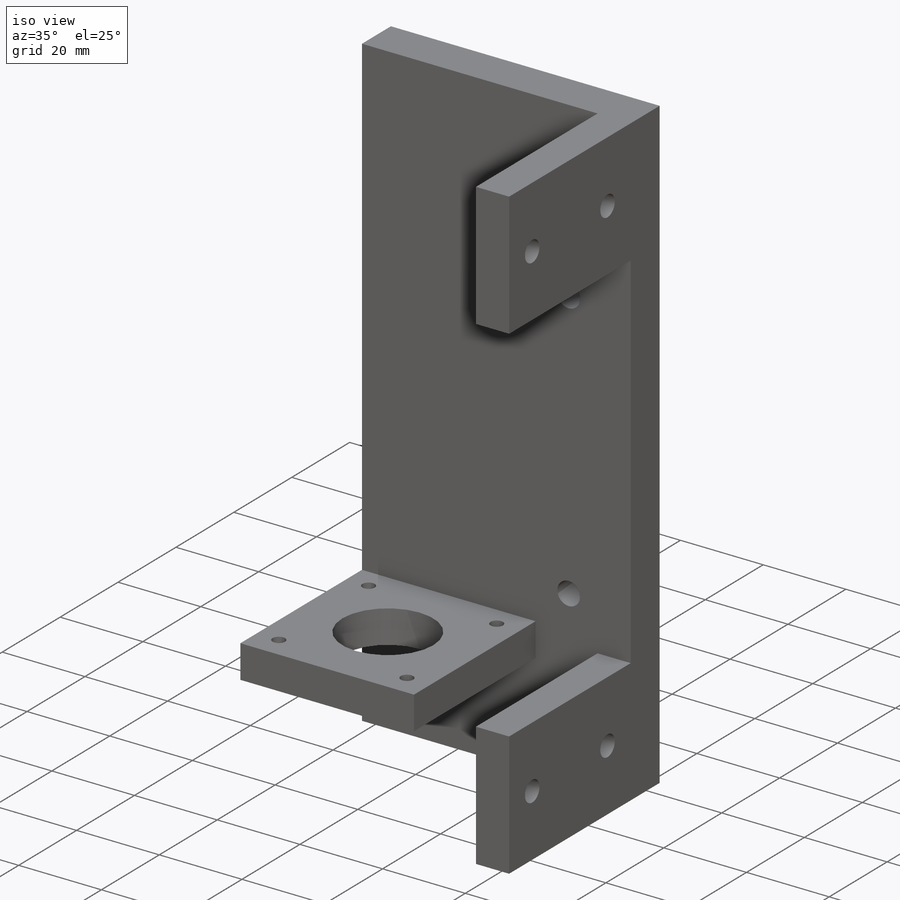
[diagram: iso view]
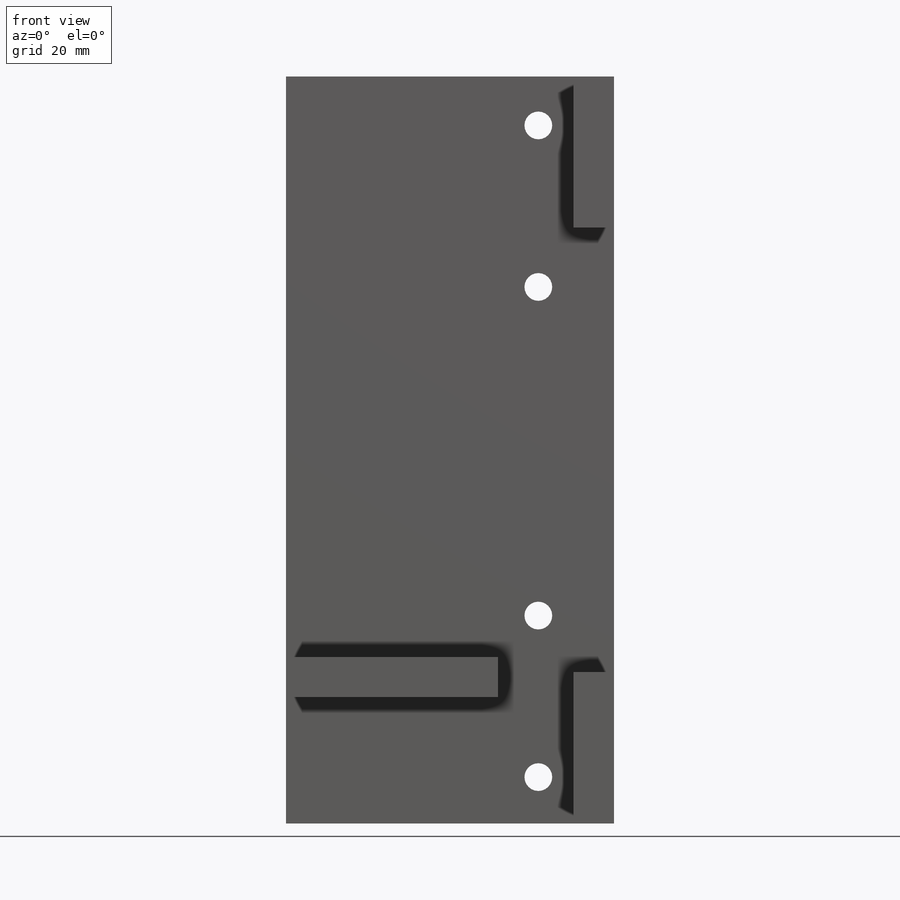
[diagram: front view]
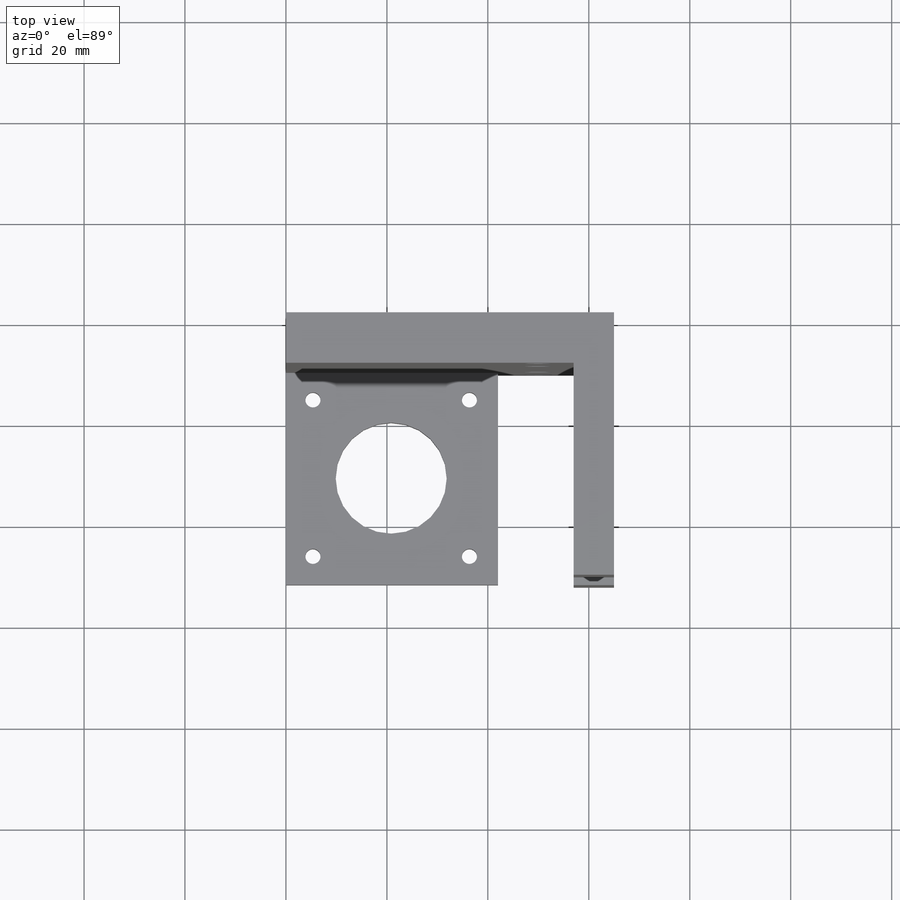
[diagram: top view]
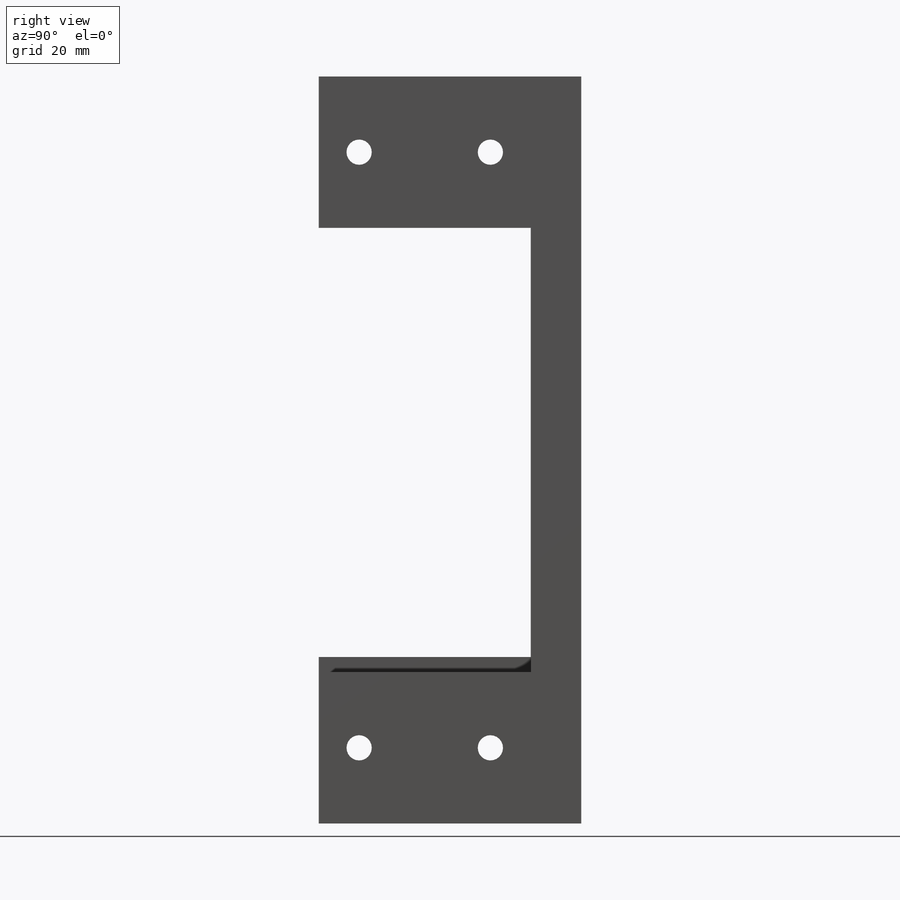
[diagram: right view]
SOLIDWORKS PART (.sldprt)
format: sldprt  version: not decoded by parser v0  size: 370,688 bytes
history: native  units: mm
features: sketch x8, cut_extrude x5, plane x3, extrude x3, material x1 (+9 scaffold rows collapsed)
feature tree (29):
  scaffold x9  (default folders/planes/origin — collapsed)
  material  "Material <not specified>"
  plane  "Plan de face"
  plane  "Plan de dessus"
  plane  "Plan de droite"
  sketch  "Sketch1"  dims[c1.D1=145.0mm c1.D2=145.0mm c1.D3=65.0mm c1.D4=65.0mm c2.D3=75.0mm c2.D1=148.0mm c2.D2=4.0mm]
  extrude  "Boss-Extrude1"  Depth=10mm
  sketch  "Sketch2"  dims[D1=25.0mm D2=8.0mm D3=55.0mm]
  extrude  "Boss-Extrude2"  Depth=42mm
  sketch  "Sketch3"  dims[c1.D1=22.0mm c1.D2=21.15mm c1.D3=21.15mm c2.D1=20.85mm c2.D2=24.85mm c2.D3=26.5mm c2.D4=24.0mm]
  cut_extrude  "Cut-Extrude1"  [1 undecoded]
  sketch  "Sketch4"  dims[D1=8.0mm D2=30.0mm D3=8.0mm]
  extrude  "Boss-Extrude3"  Depth=42mm
  sketch  "Sketch5"  dims[D1=5.0mm D2=5.0mm D3=8.0mm D4=8.0mm D5=15.0mm D6=15.0mm]
  cut_extrude  "Cut-Extrude2"  [1 undecoded]
  sketch  "Sketch6"  dims[c1.D1=3.0mm c1.D2=3.0mm c1.D9=3.0mm c1.D10=3.0mm c1.D5=1.55mm c1.D8=1.5mm c2.D10=1.55mm c2.D9=1.55mm c2.D14=1.55mm c2.D3=31.0mm c2.D4=15.5mm c2.D5=15.5mm c2.D6=15.5mm c2.D7=15.5mm c2.D8=15.5mm c3.D9=5.65mm c3.D11=15.5mm c3.D12=15.5mm c3.D4=31.0mm c3.D1=31.0mm c3.D2=31.0mm c3.D3=21.15mm c4.D4=9.4mm c4.D6=2.0mm c4.D7=1.0mm c4.D8=5.65mm c4.D3=5.35mm c4.D9=2.0mm c4.D11=2.0mm c5.D8=1.0mm c5.D12=2.0mm c5.D13=1.0mm c5.D15=2.0mm c5.D16=1.0mm]
  cut_extrude  "Cut-Extrude3"  [1 undecoded]
  sketch  "Sketch10"  dims[D1=5.5mm D2=5.5mm D3=5.5mm D4=5.5mm D5=11.0mm D6=32.0mm D7=65.1mm D8=32.0mm D9=9.7mm]
  cut_extrude  "Cut-Extrude5"  [1 undecoded]
  sketch  "Sketch11"  dims[D1=47.0mm D2=85.0mm D3=34.0mm]
  cut_extrude  "Cut-Extrude6"  Depth=10mm
decode coverage: 12 of 16 modeling features carry decoded parameters
note: 4 parameter values undecoded
summary: no parameter record found for 4 features
note: suppression state not decoded; provenance and decode notes live in map.json
